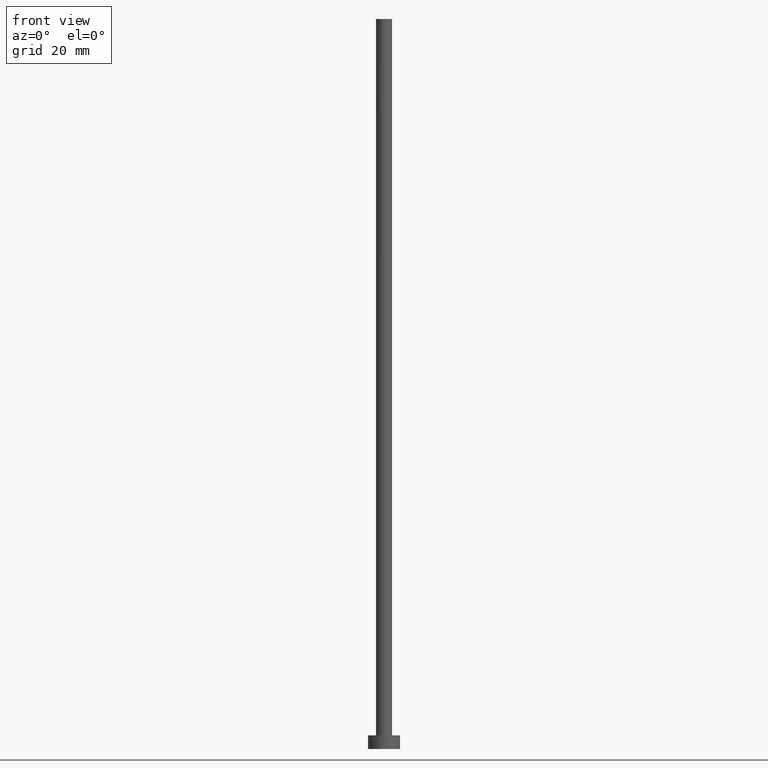
[diagram: clean part render]
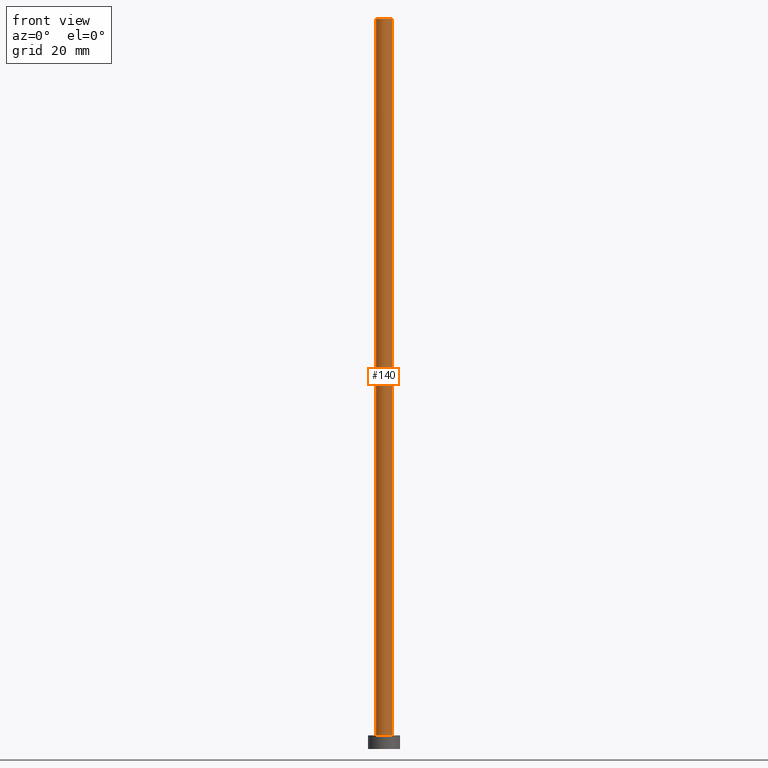
[diagram: same view with one face highlighted and labeled with its STEP entity id]
A machine part, front view. The second image highlights one B-rep face of the part: STEP entity #140.
In plain terms, the highlighted cylindrical surface (edge-blend (fillet) strip) has radius 1.75 mm, axis along (-0, -0, -1).
Its self-contained STEP definition (entity closure, byte-faithful):
#6 = FACE_OUTER_BOUND ( 'NONE', #119, .T. ) ;
#7 = CARTESIAN_POINT ( 'NONE',  ( 1.750000000000000000, 2.143131898507868297E-16, 3.000000000000000000 ) ) ;
#20 = VECTOR ( 'NONE', #231, 1000.000000000000000 ) ;
#23 = ORIENTED_EDGE ( 'NONE', *, *, #187, .T. ) ;
#24 = VERTEX_POINT ( 'NONE', #91 ) ;
#28 = DIRECTION ( 'NONE',  ( -1.000000000000000000, 0.000000000000000000, 0.000000000000000000 ) ) ;
#34 = CARTESIAN_POINT ( 'NONE',  ( 0.000000000000000000, 0.000000000000000000, 160.0000000000000000 ) ) ;
#41 = AXIS2_PLACEMENT_3D ( 'NONE', #34, #113, #76 ) ;
#47 = VERTEX_POINT ( 'NONE', #62 ) ;
#48 = CARTESIAN_POINT ( 'NONE',  ( 1.750000000000000000, 2.143131898507868297E-16, 160.0000000000000000 ) ) ;
#54 = EDGE_CURVE ( 'NONE', #233, #64, #155, .T. ) ;
#56 = CIRCLE ( 'NONE', #211, 1.750000000000000000 ) ;
#62 = CARTESIAN_POINT ( 'NONE',  ( -1.750000000000000000, 0.000000000000000000, 3.000000000000000000 ) ) ;
#63 = CARTESIAN_POINT ( 'NONE',  ( 0.000000000000000000, 0.000000000000000000, 160.0000000000000000 ) ) ;
#64 = VERTEX_POINT ( 'NONE', #7 ) ;
#65 = DIRECTION ( 'NONE',  ( -0.000000000000000000, -0.000000000000000000, -1.000000000000000000 ) ) ;
#75 = ORIENTED_EDGE ( 'NONE', *, *, #54, .F. ) ;
#76 = DIRECTION ( 'NONE',  ( 1.000000000000000000, 0.000000000000000000, 0.000000000000000000 ) ) ;
#82 = EDGE_CURVE ( 'NONE', #24, #47, #171, .T. ) ;
#91 = CARTESIAN_POINT ( 'NONE',  ( -1.750000000000000000, 0.000000000000000000, 160.0000000000000000 ) ) ;
#95 = DIRECTION ( 'NONE',  ( 1.000000000000000000, 0.000000000000000000, 0.000000000000000000 ) ) ;
#102 = CARTESIAN_POINT ( 'NONE',  ( -1.750000000000000000, 0.000000000000000000, 160.0000000000000000 ) ) ;
#111 = CIRCLE ( 'NONE', #41, 1.750000000000000000 ) ;
#112 = DIRECTION ( 'NONE',  ( 0.000000000000000000, 0.000000000000000000, 1.000000000000000000 ) ) ;
#113 = DIRECTION ( 'NONE',  ( 0.000000000000000000, 0.000000000000000000, 1.000000000000000000 ) ) ;
#119 = EDGE_LOOP ( 'NONE', ( #75, #249, #149, #23 ) ) ;
#140 = ADVANCED_FACE ( 'NONE', ( #6 ), #168, .T. ) ;
#149 = ORIENTED_EDGE ( 'NONE', *, *, #82, .T. ) ;
#155 = LINE ( 'NONE', #48, #244 ) ;
#168 = CYLINDRICAL_SURFACE ( 'NONE', #205, 1.750000000000000000 ) ;
#171 = LINE ( 'NONE', #102, #20 ) ;
#187 = EDGE_CURVE ( 'NONE', #47, #64, #56, .T. ) ;
#205 = AXIS2_PLACEMENT_3D ( 'NONE', #63, #213, #28 ) ;
#211 = AXIS2_PLACEMENT_3D ( 'NONE', #219, #112, #95 ) ;
#213 = DIRECTION ( 'NONE',  ( -0.000000000000000000, -0.000000000000000000, -1.000000000000000000 ) ) ;
#219 = CARTESIAN_POINT ( 'NONE',  ( 0.000000000000000000, 0.000000000000000000, 3.000000000000000000 ) ) ;
#225 = CARTESIAN_POINT ( 'NONE',  ( 1.750000000000000000, 2.143131898507868297E-16, 160.0000000000000000 ) ) ;
#226 = EDGE_CURVE ( 'NONE', #24, #233, #111, .T. ) ;
#231 = DIRECTION ( 'NONE',  ( -0.000000000000000000, -0.000000000000000000, -1.000000000000000000 ) ) ;
#233 = VERTEX_POINT ( 'NONE', #225 ) ;
#244 = VECTOR ( 'NONE', #65, 1000.000000000000000 ) ;
#249 = ORIENTED_EDGE ( 'NONE', *, *, #226, .F. ) ;